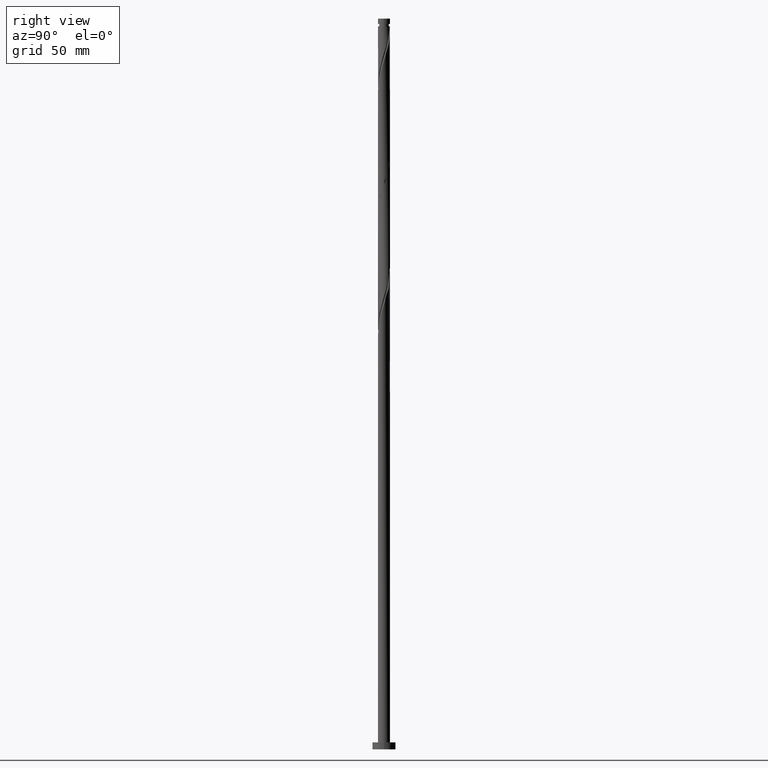
[diagram: clean part render]
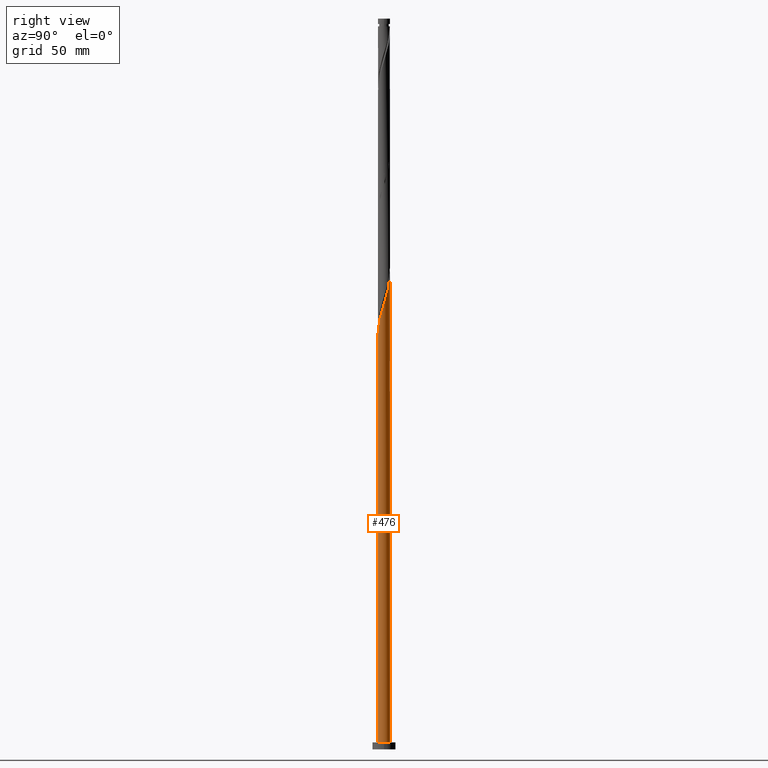
[diagram: same view with one face highlighted and labeled with its STEP entity id]
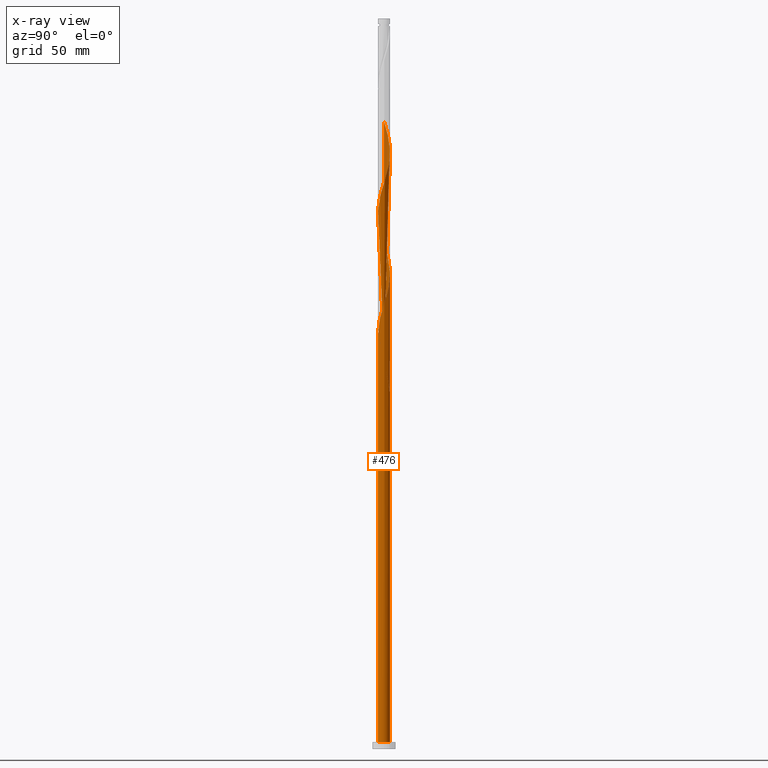
[diagram: x-ray of the same camera — body ghosted, the highlighted face saturated]
A machine part, right view. The second image highlights one B-rep face of the part: STEP entity #476.
The next image is the same camera in x-ray: the body ghosted, the highlighted face saturated — about 0% of this face is hidden behind the body in this view.
In plain terms, the highlighted cylindrical surface (bore or boss wall) has radius 2.6 mm, axis along (-0, -0, -1).
Its self-contained STEP definition (entity closure, byte-faithful):
#6 = CARTESIAN_POINT ( 'NONE',  ( 1.184137513581183132, 2.314696167735583288, 253.5239839780931277 ) ) ;
#7 = ORIENTED_EDGE ( 'NONE', *, *, #1401, .F. ) ;
#13 = CARTESIAN_POINT ( 'NONE',  ( -0.6393803607822544643, -2.520157287600512941, 176.6489839780931277 ) ) ;
#20 = AXIS2_PLACEMENT_3D ( 'NONE', #141, #697, #1101 ) ;
#21 = CARTESIAN_POINT ( 'NONE',  ( -1.444941135775471563, -2.181275912834383934, 173.8364839780931277 ) ) ;
#29 = CARTESIAN_POINT ( 'NONE',  ( 0.6393803607822547974, 2.520157287600512941, 202.8989839780931277 ) ) ;
#41 = CARTESIAN_POINT ( 'NONE',  ( -2.314696167735583732, 1.184137513581183132, 214.1489839780931561 ) ) ;
#50 = CARTESIAN_POINT ( 'NONE',  ( -1.669517066921501369, -1.993166516690927148, 172.8989839780931561 ) ) ;
#57 = LINE ( 'NONE', #1705, #81 ) ;
#60 = CARTESIAN_POINT ( 'NONE',  ( -1.894092998067532507, -1.805057120547471250, 224.4614839780930993 ) ) ;
#81 = VECTOR ( 'NONE', #1713, 1000.000000000000000 ) ;
#86 = CARTESIAN_POINT ( 'NONE',  ( -0.6393803607822529100, 2.520157287600509832, 157.8989839780931845 ) ) ;
#88 = CARTESIAN_POINT ( 'NONE',  ( -1.993166516690927148, 1.669517066921501369, 159.7739839780931561 ) ) ;
#95 = CARTESIAN_POINT ( 'NONE',  ( -2.592198152564242797, 0.3554268301776150607, 164.4614839780931561 ) ) ;
#96 = CARTESIAN_POINT ( 'NONE',  ( 0.000000000000000000, 0.000000000000000000, 154.1489839780931561 ) ) ;
#107 = CARTESIAN_POINT ( 'NONE',  ( 0.2303028164299621983, -2.606296243045292726, 231.9614839780931277 ) ) ;
#108 = ORIENTED_EDGE ( 'NONE', *, *, #502, .F. ) ;
#119 = CARTESIAN_POINT ( 'NONE',  ( 1.993166516690927148, -1.669517066921501369, 238.5239839780931845 ) ) ;
#129 = CARTESIAN_POINT ( 'NONE',  ( -2.314696167735583732, 1.184137513581183132, 266.6489839780931561 ) ) ;
#141 = CARTESIAN_POINT ( 'NONE',  ( 0.000000000000000000, 0.000000000000000000, 3.000000000000000000 ) ) ;
#142 = ORIENTED_EDGE ( 'NONE', *, *, #1593, .T. ) ;
#159 = CARTESIAN_POINT ( 'NONE',  ( -1.894092998067532507, -1.805057120547471250, 171.9614839780932414 ) ) ;
#168 = CARTESIAN_POINT ( 'NONE',  ( 2.548000000000004039, 0.5173934672954453307, 193.5239839780932414 ) ) ;
#178 = CARTESIAN_POINT ( 'NONE',  ( 1.444941135775472008, 2.181275912834383046, 200.0864839780931561 ) ) ;
#184 = CARTESIAN_POINT ( 'NONE',  ( -1.805057120547471472, 1.894092998067532507, 211.3364839780931561 ) ) ;
#193 = CARTESIAN_POINT ( 'NONE',  ( 2.520157287600512941, -0.6393803607822544643, 189.7739839780931277 ) ) ;
#202 = CARTESIAN_POINT ( 'NONE',  ( -2.368985442673811725, -1.071404672567553451, 221.6489839780931845 ) ) ;
#223 = CARTESIAN_POINT ( 'NONE',  ( -0.3554268301776140060, 2.592198152564239688, 156.9614839780932130 ) ) ;
#235 = CARTESIAN_POINT ( 'NONE',  ( -1.805057120547471472, 1.894092998067532507, 158.8364839780931277 ) ) ;
#239 = EDGE_CURVE ( 'NONE', #1625, #1253, #57, .T. ) ;
#249 = CARTESIAN_POINT ( 'NONE',  ( 1.444941135775472008, 2.181275912834383046, 252.5864839780930424 ) ) ;
#260 = CARTESIAN_POINT ( 'NONE',  ( 0.8044841181609286851, -2.489703756954713576, 233.8364839780931845 ) ) ;
#261 = VERTEX_POINT ( 'NONE', #1024 ) ;
#271 = CARTESIAN_POINT ( 'NONE',  ( 2.489703756954713576, 0.8044841181609284630, 246.9614839780931845 ) ) ;
#293 = CARTESIAN_POINT ( 'NONE',  ( 2.181275912834383934, -1.444941135775472008, 186.9614839780931277 ) ) ;
#303 = CYLINDRICAL_SURFACE ( 'NONE', #1150, 2.600000000000000089 ) ;
#311 = DIRECTION ( 'NONE',  ( -0.000000000000000000, -0.000000000000000000, -1.000000000000000000 ) ) ;
#321 = CARTESIAN_POINT ( 'NONE',  ( -1.071404672567553451, 2.368985442673811725, 208.5239839780931277 ) ) ;
#331 = CARTESIAN_POINT ( 'NONE',  ( -2.520157287600513385, 0.6393803607822543533, 216.0239839780931277 ) ) ;
#335 = VERTEX_POINT ( 'NONE', #504 ) ;
#339 = CARTESIAN_POINT ( 'NONE',  ( -2.599247197804768650, 0.06256200687382625081, 217.8989839780931277 ) ) ;
#343 = EDGE_CURVE ( 'NONE', #698, #261, #915, .T. ) ;
#382 = CARTESIAN_POINT ( 'NONE',  ( -0.3554268301776152272, -2.592198152564243241, 230.0864839780931277 ) ) ;
#383 = CARTESIAN_POINT ( 'NONE',  ( 0.000000000000000000, 0.000000000000000000, 3.000000000000000000 ) ) ;
#389 = CARTESIAN_POINT ( 'NONE',  ( 1.894092998067532507, 1.805057120547471028, 250.7114839780931277 ) ) ;
#400 = CARTESIAN_POINT ( 'NONE',  ( -1.071404672567553451, 2.368985442673811725, 261.0239839780931561 ) ) ;
#403 = CIRCLE ( 'NONE', #1298, 2.600000000000000089 ) ;
#405 = CARTESIAN_POINT ( 'NONE',  ( 2.600000000000000089, 0.000000000000000000, 3.000000000000000000 ) ) ;
#416 = CARTESIAN_POINT ( 'NONE',  ( -1.338325226974177662, 2.248267128392909431, 261.9614839780931561 ) ) ;
#432 = CARTESIAN_POINT ( 'NONE',  ( 1.993166516690927148, -1.669517066921501369, 186.0239839780931561 ) ) ;
#442 = CARTESIAN_POINT ( 'NONE',  ( 1.894092998067532507, 1.805057120547471028, 198.2114839780931561 ) ) ;
#446 = VERTEX_POINT ( 'NONE', #405 ) ;
#452 = CARTESIAN_POINT ( 'NONE',  ( -0.5173934672954451086, 2.548000000000004039, 206.6489839780931845 ) ) ;
#474 = CARTESIAN_POINT ( 'NONE',  ( -2.548000000000004039, -0.5173934672954456637, 219.7739839780931845 ) ) ;
#476 = ADVANCED_FACE ( 'NONE', ( #1690 ), #303, .T. ) ;
#502 = EDGE_CURVE ( 'NONE', #335, #1625, #1194, .T. ) ;
#504 = CARTESIAN_POINT ( 'NONE',  ( -2.600000000000004086, -2.320957782597260787E-15, 165.5994669001870818 ) ) ;
#506 = ORIENTED_EDGE ( 'NONE', *, *, #1303, .F. ) ;
#510 = CARTESIAN_POINT ( 'NONE',  ( -2.600000000000004086, -2.320957782597260787E-15, 165.5994669001870818 ) ) ;
#525 = CARTESIAN_POINT ( 'NONE',  ( -0.6393803607822544643, -2.520157287600512941, 229.1489839780930708 ) ) ;
#536 = CARTESIAN_POINT ( 'NONE',  ( -1.571691173760824789, 2.071180063230221080, 262.8989839780931561 ) ) ;
#556 = EDGE_CURVE ( 'NONE', #446, #591, #1539, .T. ) ;
#560 = CARTESIAN_POINT ( 'NONE',  ( 2.181275912834383934, -1.444941135775472008, 239.4614839780931277 ) ) ;
#566 = CARTESIAN_POINT ( 'NONE',  ( 1.805057120547471250, -1.894092998067532507, 185.0864839780931277 ) ) ;
#586 = CARTESIAN_POINT ( 'NONE',  ( 0.3554268301776155048, 2.592198152564242797, 203.8364839780931845 ) ) ;
#591 = VERTEX_POINT ( 'NONE', #1672 ) ;
#596 = CARTESIAN_POINT ( 'NONE',  ( 1.571691173760824567, -2.071180063230221524, 184.1489839780931561 ) ) ;
#604 = CARTESIAN_POINT ( 'NONE',  ( 1.338325226974177218, -2.248267128392909431, 183.2114839780931561 ) ) ;
#614 = CARTESIAN_POINT ( 'NONE',  ( -1.669517066921501369, -1.993166516690927148, 225.3989839780931845 ) ) ;
#639 = LINE ( 'NONE', #1634, #781 ) ;
#641 = CARTESIAN_POINT ( 'NONE',  ( -2.181275912834383934, 1.444941135775471563, 160.7114839780930708 ) ) ;
#645 = ORIENTED_EDGE ( 'NONE', *, *, #556, .T. ) ;
#651 = CARTESIAN_POINT ( 'NONE',  ( -2.599247197804768650, 0.06256200687382625081, 165.3989839780931277 ) ) ;
#665 = CARTESIAN_POINT ( 'NONE',  ( 1.071404672567553229, -2.368985442673811725, 234.7739839780931561 ) ) ;
#675 = CARTESIAN_POINT ( 'NONE',  ( -0.06256200687382634795, -2.599247197804768650, 231.0239839780931561 ) ) ;
#686 = CARTESIAN_POINT ( 'NONE',  ( -2.181275912834383934, 1.444941135775471563, 265.7114839780931561 ) ) ;
#697 = DIRECTION ( 'NONE',  ( 0.000000000000000000, 0.000000000000000000, 1.000000000000000000 ) ) ;
#698 = VERTEX_POINT ( 'NONE', #1148 ) ;
#705 = CARTESIAN_POINT ( 'NONE',  ( -2.600000000000004086, 1.682880964552032780E-15, 270.5994669001871102 ) ) ;
#711 = CARTESIAN_POINT ( 'NONE',  ( -2.548000000000004039, -0.5173934672954456637, 167.2739839780931277 ) ) ;
#729 = CARTESIAN_POINT ( 'NONE',  ( 2.248267128392909431, 1.338325226974177218, 196.3364839780930993 ) ) ;
#739 = CARTESIAN_POINT ( 'NONE',  ( -1.993166516690927148, 1.669517066921501369, 212.2739839780931845 ) ) ;
#747 = CARTESIAN_POINT ( 'NONE',  ( 1.071404672567553229, -2.368985442673811725, 182.2739839780931561 ) ) ;
#757 =( BOUNDED_CURVE ( )  B_SPLINE_CURVE ( 2, ( #1490, #780, #1622, #916, #1331, #235, #88, #641, #1183, #789, #1340, #95, #651, #1193, #510 ),
 .UNSPECIFIED., .F., .T. ) 
 B_SPLINE_CURVE_WITH_KNOTS ( ( 3, 2, 2, 2, 2, 2, 2, 3 ),
 ( 0.000000000000000000, 0.008928571428571396851, 0.01785714285714290472, 0.02678571428571430157, 0.03571428571428569843, 0.04464285714285709528, 0.05357142857142860315, 0.05453034012992217378 ),
 .UNSPECIFIED. ) 
 CURVE ( )  GEOMETRIC_REPRESENTATION_ITEM ( )  RATIONAL_B_SPLINE_CURVE ( ( 0.9090909090909558010, 0.9033747362666306735, 0.9090909090909558010, 0.9033747362666306735, 0.9090909090909558010, 0.9033747362666306735, 0.9090909090909558010, 0.9033747362666306735, 0.9090909090909558010, 0.9033747362666306735, 0.9090909090909558010, 0.9033747362666306735, 0.9090909090909558010, 0.9084770030214975867, 0.9079949616362259501 ) ) 
 REPRESENTATION_ITEM ( '' )  );
#758 = CARTESIAN_POINT ( 'NONE',  ( -2.606296243045292726, -0.2303028164299624203, 218.8364839780931561 ) ) ;
#778 = CARTESIAN_POINT ( 'NONE',  ( -2.368985442673807285, 1.071404672567552341, 165.3989839780931277 ) ) ;
#780 = CARTESIAN_POINT ( 'NONE',  ( -0.8044841181609290182, 2.489703756954712688, 155.0864839780932130 ) ) ;
#781 = VECTOR ( 'NONE', #1789, 1000.000000000000000 ) ;
#787 = CARTESIAN_POINT ( 'NONE',  ( -1.184137513581180023, 2.314696167735580179, 159.7739839780931561 ) ) ;
#789 = CARTESIAN_POINT ( 'NONE',  ( -2.448116422636782197, 0.9233338913868939235, 162.5864839780931561 ) ) ;
#802 = CARTESIAN_POINT ( 'NONE',  ( 1.338325226974177218, -2.248267128392909431, 235.7114839780931845 ) ) ;
#813 = CARTESIAN_POINT ( 'NONE',  ( -0.8044841181609290182, 2.489703756954712688, 260.0864839780930993 ) ) ;
#823 = CARTESIAN_POINT ( 'NONE',  ( -2.592198152564242797, 0.3554268301776150607, 269.4614839780930993 ) ) ;
#833 = CARTESIAN_POINT ( 'NONE',  ( -0.5173934672954451086, 2.548000000000004039, 259.1489839780930993 ) ) ;
#853 = CARTESIAN_POINT ( 'NONE',  ( 2.314696167735583288, -1.184137513581183132, 187.8989839780931845 ) ) ;
#859 = EDGE_CURVE ( 'NONE', #698, #335, #757, .T. ) ;
#861 = CARTESIAN_POINT ( 'NONE',  ( -2.368985442673811725, -1.071404672567553451, 169.1489839780931845 ) ) ;
#867 = DIRECTION ( 'NONE',  ( -1.000000000000000000, 0.000000000000000000, 0.000000000000000000 ) ) ;
#876 = CARTESIAN_POINT ( 'NONE',  ( -1.571691173760824789, 2.071180063230221080, 210.3989839780931277 ) ) ;
#882 = CARTESIAN_POINT ( 'NONE',  ( -2.592198152564242797, 0.3554268301776150607, 216.9614839780931561 ) ) ;
#889 = CARTESIAN_POINT ( 'NONE',  ( -2.248267128392909431, -1.338325226974177440, 222.5864839780931277 ) ) ;
#915 = CIRCLE ( 'NONE', #1059, 2.600000000000000089 ) ;
#916 = CARTESIAN_POINT ( 'NONE',  ( -1.338325226974177662, 2.248267128392909431, 156.9614839780931277 ) ) ;
#922 = CARTESIAN_POINT ( 'NONE',  ( 0.2303028164299626424, 2.606296243045289618, 155.0864839780931561 ) ) ;
#927 = CARTESIAN_POINT ( 'NONE',  ( 2.314696167735583288, -1.184137513581183132, 240.3989839780931561 ) ) ;
#929 = CARTESIAN_POINT ( 'NONE',  ( -1.894092998067529177, 1.805057120547469474, 162.5864839780932130 ) ) ;
#935 = CARTESIAN_POINT ( 'NONE',  ( 0.6393803607822547974, 2.520157287600512941, 255.3989839780931277 ) ) ;
#937 = CARTESIAN_POINT ( 'NONE',  ( -0.06256200687382565406, 2.599247197804763765, 156.0239839780931277 ) ) ;
#947 = CARTESIAN_POINT ( 'NONE',  ( 0.5173934672954454417, -2.548000000000004039, 232.8989839780931845 ) ) ;
#957 = CARTESIAN_POINT ( 'NONE',  ( 2.606296243045292726, 0.2303028164299620595, 245.0864839780930993 ) ) ;
#967 = CARTESIAN_POINT ( 'NONE',  ( -2.448116422636782197, 0.9233338913868939235, 267.5864839780931561 ) ) ;
#975 = CARTESIAN_POINT ( 'NONE',  ( -2.600000000000004086, -2.320957782597260787E-15, 165.5994669001870818 ) ) ;
#984 = CARTESIAN_POINT ( 'NONE',  ( 2.592198152564242797, -0.3554268301776152827, 190.7114839780932130 ) ) ;
#992 = CARTESIAN_POINT ( 'NONE',  ( 1.669517066921501369, 1.993166516690927148, 199.1489839780931277 ) ) ;
#1000 = CARTESIAN_POINT ( 'NONE',  ( 1.184137513581183132, 2.314696167735583288, 201.0239839780931561 ) ) ;
#1013 = CARTESIAN_POINT ( 'NONE',  ( 0.8044841181609286851, -2.489703756954713576, 181.3364839780931277 ) ) ;
#1021 = CARTESIAN_POINT ( 'NONE',  ( -1.184137513581183132, -2.314696167735583288, 227.2739839780931561 ) ) ;
#1024 = CARTESIAN_POINT ( 'NONE',  ( 0.5173934672954459968, 2.547999999999999154, 154.1489839780931561 ) ) ;
#1056 = CARTESIAN_POINT ( 'NONE',  ( -2.600000000000000089, 3.041126355010900916E-15, 168.9485010559992304 ) ) ;
#1059 = AXIS2_PLACEMENT_3D ( 'NONE', #96, #1599, #1465 ) ;
#1072 = CARTESIAN_POINT ( 'NONE',  ( -0.2303028164299619485, 2.606296243045292726, 258.2114839780930424 ) ) ;
#1074 = DIRECTION ( 'NONE',  ( 1.000000000000000000, 0.000000000000000000, 0.000000000000000000 ) ) ;
#1081 = CARTESIAN_POINT ( 'NONE',  ( 2.592198152564242797, -0.3554268301776152827, 243.2114839780931561 ) ) ;
#1083 = CARTESIAN_POINT ( 'NONE',  ( -1.444941135775469343, 2.181275912834380826, 160.7114839780931277 ) ) ;
#1101 = DIRECTION ( 'NONE',  ( 1.000000000000000000, 0.000000000000000000, 0.000000000000000000 ) ) ;
#1109 = CARTESIAN_POINT ( 'NONE',  ( 0.06256200687382688919, 2.599247197804768206, 257.2739839780931561 ) ) ;
#1114 = CARTESIAN_POINT ( 'NONE',  ( 0.5173934672954454417, -2.548000000000004039, 180.3989839780931845 ) ) ;
#1127 = CARTESIAN_POINT ( 'NONE',  ( 0.2303028164299621983, -2.606296243045292726, 179.4614839780931277 ) ) ;
#1135 = CARTESIAN_POINT ( 'NONE',  ( 0.06256200687382688919, 2.599247197804768206, 204.7739839780931561 ) ) ;
#1145 = CARTESIAN_POINT ( 'NONE',  ( -1.338325226974177662, 2.248267128392909431, 209.4614839780931561 ) ) ;
#1148 = CARTESIAN_POINT ( 'NONE',  ( -0.5173934672954452196, 2.548000000000004039, 154.1489839780931561 ) ) ;
#1150 = AXIS2_PLACEMENT_3D ( 'NONE', #1274, #311, #867 ) ;
#1154 = CARTESIAN_POINT ( 'NONE',  ( -1.184137513581183132, -2.314696167735583288, 174.7739839780931561 ) ) ;
#1159 = CARTESIAN_POINT ( 'NONE',  ( -1.444941135775471563, -2.181275912834383934, 226.3364839780931277 ) ) ;
#1183 = CARTESIAN_POINT ( 'NONE',  ( -2.314696167735583732, 1.184137513581183132, 161.6489839780931845 ) ) ;
#1193 = CARTESIAN_POINT ( 'NONE',  ( -2.600000000000004086, 0.03128553263260996919, 165.4991042119619920 ) ) ;
#1194 =( BOUNDED_CURVE ( )  B_SPLINE_CURVE ( 2, ( #975, #1265, #711, #1558, #861, #1257, #1408, #159, #50, #21, #1154, #1540, #13, #1715, #1427, #1127, #1114, #1013, #747, #604, #596, #566, #432, #293, #853, #1724, #193, #984, #1549, #1418, #168, #1440, #1446, #729, #1702, #442, #992, #178, #1000, #1294, #29, #586, #1135, #1709, #452, #1571, #321, #1145, #876, #184, #739, #1283, #41, #1581, #331, #882, #339, #758, #474, #1589, #202, #889, #1305, #60, #614, #1159, #1021, #1455, #525, #382, #675, #107, #947, #260, #665, #802, #1351, #1252, #119, #560, #927, #1218, #1787, #1081, #1642, #957, #1524, #271, #1209, #1651, #1777, #389, #1501, #249, #6, #1398, #935, #1508, #1109, #1072, #833, #813, #400, #416, #536, #1375, #1365, #686, #129, #967, #1516, #823, #1230, #1796, #705 ),
 .UNSPECIFIED., .F., .T. ) 
 B_SPLINE_CURVE_WITH_KNOTS ( ( 3, 2, 2, 2, 2, 2, 2, 2, 2, 2, 2, 2, 2, 2, 2, 2, 2, 2, 2, 2, 2, 2, 2, 2, 2, 2, 2, 2, 2, 2, 2, 2, 2, 2, 2, 2, 2, 2, 2, 2, 2, 2, 2, 2, 2, 2, 2, 2, 2, 2, 2, 2, 2, 2, 2, 2, 2, 3 ),
 ( 0.05453034012992217378, 0.06250000000000000000, 0.07142857142857139685, 0.08035714285714290472, 0.08928571428571430157, 0.09821428571428569843, 0.1071428571428570953, 0.1160714285714286031, 0.1250000000000000000, 0.1339285714285713969, 0.1428571428571429047, 0.1517857142857143016, 0.1607142857142856984, 0.1696428571428570953, 0.1785714285714286031, 0.1875000000000000000, 0.1964285714285713969, 0.2053571428571429047, 0.2142857142857143016, 0.2232142857142856984, 0.2321428571428570953, 0.2410714285714286031, 0.2500000000000000000, 0.2589285714285713969, 0.2678571428571429047, 0.2767857142857143016, 0.2857142857142856984, 0.2946428571428570953, 0.3035714285714286031, 0.3125000000000000000, 0.3214285714285713969, 0.3303571428571429047, 0.3392857142857143016, 0.3482142857142856984, 0.3571428571428570953, 0.3660714285714286031, 0.3750000000000000000, 0.3839285714285713969, 0.3928571428571429047, 0.4017857142857143016, 0.4107142857142856984, 0.4196428571428570953, 0.4285714285714286031, 0.4375000000000000000, 0.4464285714285713969, 0.4553571428571429047, 0.4642857142857143016, 0.4732142857142856984, 0.4821428571428570953, 0.4910714285714286031, 0.5000000000000000000, 0.5089285714285713969, 0.5178571428571427937, 0.5267857142857143016, 0.5357142857142856984, 0.5446428571428572063, 0.5535714285714286031, 0.5545303401299219725 ),
 .UNSPECIFIED. ) 
 CURVE ( )  GEOMETRIC_REPRESENTATION_ITEM ( )  RATIONAL_B_SPLINE_CURVE ( ( 0.9079949616362259501, 0.9039886423360891099, 0.9090909090909558010, 0.9033747362666306735, 0.9090909090909558010, 0.9033747362666306735, 0.9090909090909558010, 0.9033747362666306735, 0.9090909090909558010, 0.9033747362666306735, 0.9090909090909558010, 0.9033747362666306735, 0.9090909090909558010, 0.9033747362666306735, 0.9090909090909558010, 0.9033747362666306735, 0.9090909090909558010, 0.9033747362666306735, 0.9090909090909558010, 0.9033747362666306735, 0.9090909090909558010, 0.9033747362666306735, 0.9090909090909558010, 0.9033747362666306735, 0.9090909090909558010, 0.9033747362666306735, 0.9090909090909558010, 0.9033747362666306735, 0.9090909090909558010, 0.9033747362666306735, 0.9090909090909558010, 0.9033747362666306735, 0.9090909090909558010, 0.9033747362666306735, 0.9090909090909558010, 0.9033747362666306735, 0.9090909090909558010, 0.9033747362666306735, 0.9090909090909558010, 0.9033747362666306735, 0.9090909090909558010, 0.9033747362666306735, 0.9090909090909558010, 0.9033747362666306735, 0.9090909090909558010, 0.9033747362666306735, 0.9090909090909558010, 0.9033747362666306735, 0.9090909090909558010, 0.9033747362666306735, 0.9090909090909558010, 0.9033747362666306735, 0.9090909090909558010, 0.9033747362666306735, 0.9090909090909558010, 0.9033747362666306735, 0.9090909090909558010, 0.9033747362666306735, 0.9090909090909558010, 0.9033747362666306735, 0.9090909090909558010, 0.9033747362666306735, 0.9090909090909558010, 0.9033747362666306735, 0.9090909090909558010, 0.9033747362666306735, 0.9090909090909558010, 0.9033747362666306735, 0.9090909090909558010, 0.9033747362666306735, 0.9090909090909558010, 0.9033747362666306735, 0.9090909090909558010, 0.9033747362666306735, 0.9090909090909558010, 0.9033747362666306735, 0.9090909090909558010, 0.9033747362666306735, 0.9090909090909558010, 0.9033747362666306735, 0.9090909090909558010, 0.9033747362666306735, 0.9090909090909558010, 0.9033747362666306735, 0.9090909090909558010, 0.9033747362666306735, 0.9090909090909558010, 0.9033747362666306735, 0.9090909090909558010, 0.9033747362666306735, 0.9090909090909558010, 0.9033747362666306735, 0.9090909090909558010, 0.9033747362666306735, 0.9090909090909558010, 0.9033747362666306735, 0.9090909090909558010, 0.9033747362666306735, 0.9090909090909558010, 0.9033747362666306735, 0.9090909090909558010, 0.9033747362666306735, 0.9090909090909558010, 0.9033747362666306735, 0.9090909090909558010, 0.9033747362666306735, 0.9090909090909558010, 0.9033747362666306735, 0.9090909090909558010, 0.9033747362666306735, 0.9090909090909558010, 0.9033747362666306735, 0.9090909090909558010, 0.9084770030214975867, 0.9079949616362259501 ) ) 
 REPRESENTATION_ITEM ( '' )  );
#1198 = ORIENTED_EDGE ( 'NONE', *, *, #1303, .T. ) ;
#1209 = CARTESIAN_POINT ( 'NONE',  ( 2.368985442673811725, 1.071404672567553007, 247.8989839780931277 ) ) ;
#1211 = CARTESIAN_POINT ( 'NONE',  ( -1.669517066921498927, 1.993166516690924706, 161.6489839780931561 ) ) ;
#1218 = CARTESIAN_POINT ( 'NONE',  ( 2.448116422636782197, -0.9233338913868941455, 241.3364839780931561 ) ) ;
#1230 = CARTESIAN_POINT ( 'NONE',  ( -2.599247197804768650, 0.06256200687382625081, 270.3989839780931561 ) ) ;
#1252 = CARTESIAN_POINT ( 'NONE',  ( 1.805057120547471250, -1.894092998067532507, 237.5864839780931561 ) ) ;
#1253 = VERTEX_POINT ( 'NONE', #1602 ) ;
#1257 = CARTESIAN_POINT ( 'NONE',  ( -2.248267128392909431, -1.338325226974177440, 170.0864839780931561 ) ) ;
#1262 = EDGE_LOOP ( 'NONE', ( #1662, #108, #1198, #142, #645, #506, #1525, #1352, #7 ) ) ;
#1265 = CARTESIAN_POINT ( 'NONE',  ( -2.600000000000002309, -0.2613098319674008185, 166.4377379791506542 ) ) ;
#1274 = CARTESIAN_POINT ( 'NONE',  ( 0.000000000000000000, 0.000000000000000000, 315.0000000000000000 ) ) ;
#1283 = CARTESIAN_POINT ( 'NONE',  ( -2.181275912834383934, 1.444941135775471563, 213.2114839780931277 ) ) ;
#1294 = CARTESIAN_POINT ( 'NONE',  ( 0.9233338913868945896, 2.448116422636781753, 201.9614839780931277 ) ) ;
#1298 = AXIS2_PLACEMENT_3D ( 'NONE', #383, #1502, #1074 ) ;
#1303 = EDGE_CURVE ( 'NONE', #335, #591, #639, .T. ) ;
#1305 = CARTESIAN_POINT ( 'NONE',  ( -2.071180063230221080, -1.571691173760824789, 223.5239839780931561 ) ) ;
#1308 =( BOUNDED_CURVE ( )  B_SPLINE_CURVE ( 2, ( #1056, #1510, #1367, #1337, #778, #1779, #1327, #929, #1211, #1083, #787, #1653, #86, #223, #937, #922, #1626 ),
 .UNSPECIFIED., .F., .T. ) 
 B_SPLINE_CURVE_WITH_KNOTS ( ( 3, 2, 2, 2, 2, 2, 2, 2, 3 ),
 ( 0.9295303401299218615, 0.9375000000000000000, 0.9464285714285713969, 0.9553571428571429047, 0.9642857142857143016, 0.9732142857142856984, 0.9821428571428570953, 0.9910714285714286031, 1.000000000000000000 ),
 .UNSPECIFIED. ) 
 CURVE ( )  GEOMETRIC_REPRESENTATION_ITEM ( )  RATIONAL_B_SPLINE_CURVE ( ( 0.9079949616362197329, 0.9039886423360823375, 0.9090909090909493617, 0.9033747362666241232, 0.9090909090909493617, 0.9033747362666241232, 0.9090909090909493617, 0.9033747362666241232, 0.9090909090909493617, 0.9033747362666241232, 0.9090909090909493617, 0.9033747362666241232, 0.9090909090909493617, 0.9033747362666241232, 0.9090909090909493617, 0.9033747362666241232, 0.9090909090909493617 ) ) 
 REPRESENTATION_ITEM ( '' )  );
#1327 = CARTESIAN_POINT ( 'NONE',  ( -2.071180063230217083, 1.571691173760822346, 163.5239839780931561 ) ) ;
#1331 = CARTESIAN_POINT ( 'NONE',  ( -1.571691173760824789, 2.071180063230221080, 157.8989839780931561 ) ) ;
#1337 = CARTESIAN_POINT ( 'NONE',  ( -2.489703756954709579, 0.8044841181609286851, 166.3364839780931561 ) ) ;
#1340 = CARTESIAN_POINT ( 'NONE',  ( -2.520157287600513385, 0.6393803607822543533, 163.5239839780930993 ) ) ;
#1351 = CARTESIAN_POINT ( 'NONE',  ( 1.571691173760824567, -2.071180063230221524, 236.6489839780931277 ) ) ;
#1352 = ORIENTED_EDGE ( 'NONE', *, *, #343, .T. ) ;
#1365 = CARTESIAN_POINT ( 'NONE',  ( -1.993166516690927148, 1.669517066921501369, 264.7739839780930993 ) ) ;
#1367 = CARTESIAN_POINT ( 'NONE',  ( -2.547999999999999154, 0.5173934672954455527, 167.2739839780931277 ) ) ;
#1375 = CARTESIAN_POINT ( 'NONE',  ( -1.805057120547471472, 1.894092998067532507, 263.8364839780931561 ) ) ;
#1398 = CARTESIAN_POINT ( 'NONE',  ( 0.9233338913868945896, 2.448116422636781753, 254.4614839780931277 ) ) ;
#1401 = EDGE_CURVE ( 'NONE', #1253, #261, #1308, .T. ) ;
#1408 = CARTESIAN_POINT ( 'NONE',  ( -2.071180063230221080, -1.571691173760824789, 171.0239839780931277 ) ) ;
#1418 = CARTESIAN_POINT ( 'NONE',  ( 2.606296243045292726, 0.2303028164299620595, 192.5864839780930993 ) ) ;
#1427 = CARTESIAN_POINT ( 'NONE',  ( -0.06256200687382634795, -2.599247197804768650, 178.5239839780931561 ) ) ;
#1440 = CARTESIAN_POINT ( 'NONE',  ( 2.489703756954713576, 0.8044841181609284630, 194.4614839780931561 ) ) ;
#1446 = CARTESIAN_POINT ( 'NONE',  ( 2.368985442673811725, 1.071404672567553007, 195.3989839780931277 ) ) ;
#1455 = CARTESIAN_POINT ( 'NONE',  ( -0.9233338913868941455, -2.448116422636782197, 228.2114839780931277 ) ) ;
#1465 = DIRECTION ( 'NONE',  ( -1.000000000000000000, 0.000000000000000000, 0.000000000000000000 ) ) ;
#1490 = CARTESIAN_POINT ( 'NONE',  ( -0.5173934672954452196, 2.548000000000004039, 154.1489839780931845 ) ) ;
#1501 = CARTESIAN_POINT ( 'NONE',  ( 1.669517066921501369, 1.993166516690927148, 251.6489839780931561 ) ) ;
#1502 = DIRECTION ( 'NONE',  ( 0.000000000000000000, 0.000000000000000000, 1.000000000000000000 ) ) ;
#1508 = CARTESIAN_POINT ( 'NONE',  ( 0.3554268301776155048, 2.592198152564242797, 256.3364839780932130 ) ) ;
#1510 = CARTESIAN_POINT ( 'NONE',  ( -2.600000000000000533, 0.2613098319673910486, 168.1102299770356581 ) ) ;
#1516 = CARTESIAN_POINT ( 'NONE',  ( -2.520157287600513385, 0.6393803607822543533, 268.5239839780931561 ) ) ;
#1524 = CARTESIAN_POINT ( 'NONE',  ( 2.548000000000004039, 0.5173934672954453307, 246.0239839780931845 ) ) ;
#1525 = ORIENTED_EDGE ( 'NONE', *, *, #859, .F. ) ;
#1539 = CIRCLE ( 'NONE', #20, 2.600000000000000089 ) ;
#1540 = CARTESIAN_POINT ( 'NONE',  ( -0.9233338913868941455, -2.448116422636782197, 175.7114839780931561 ) ) ;
#1549 = CARTESIAN_POINT ( 'NONE',  ( 2.599247197804768650, -0.06256200687382657000, 191.6489839780931845 ) ) ;
#1558 = CARTESIAN_POINT ( 'NONE',  ( -2.489703756954713576, -0.8044841181609289071, 168.2114839780932130 ) ) ;
#1571 = CARTESIAN_POINT ( 'NONE',  ( -0.8044841181609290182, 2.489703756954712688, 207.5864839780931845 ) ) ;
#1581 = CARTESIAN_POINT ( 'NONE',  ( -2.448116422636782197, 0.9233338913868939235, 215.0864839780931277 ) ) ;
#1589 = CARTESIAN_POINT ( 'NONE',  ( -2.489703756954713576, -0.8044841181609289071, 220.7114839780931561 ) ) ;
#1593 = EDGE_CURVE ( 'NONE', #591, #446, #403, .T. ) ;
#1599 = DIRECTION ( 'NONE',  ( 0.000000000000000000, -0.000000000000000000, -1.000000000000000000 ) ) ;
#1602 = CARTESIAN_POINT ( 'NONE',  ( -2.600000000000000089, 3.041126355010901310E-15, 168.9485010559992304 ) ) ;
#1622 = CARTESIAN_POINT ( 'NONE',  ( -1.071404672567553451, 2.368985442673811725, 156.0239839780931561 ) ) ;
#1625 = VERTEX_POINT ( 'NONE', #1644 ) ;
#1626 = CARTESIAN_POINT ( 'NONE',  ( 0.5173934672954459968, 2.547999999999999154, 154.1489839780931561 ) ) ;
#1634 = CARTESIAN_POINT ( 'NONE',  ( -2.600000000000000089, 0.000000000000000000, 315.0000000000000000 ) ) ;
#1642 = CARTESIAN_POINT ( 'NONE',  ( 2.599247197804768650, -0.06256200687382657000, 244.1489839780931561 ) ) ;
#1644 = CARTESIAN_POINT ( 'NONE',  ( -2.600000000000004086, 1.682880964552032780E-15, 270.5994669001871102 ) ) ;
#1651 = CARTESIAN_POINT ( 'NONE',  ( 2.248267128392909431, 1.338325226974177218, 248.8364839780931277 ) ) ;
#1653 = CARTESIAN_POINT ( 'NONE',  ( -0.9233338913868922582, 2.448116422636779976, 158.8364839780931561 ) ) ;
#1662 = ORIENTED_EDGE ( 'NONE', *, *, #239, .F. ) ;
#1672 = CARTESIAN_POINT ( 'NONE',  ( -2.600000000000000089, 0.000000000000000000, 3.000000000000000000 ) ) ;
#1690 = FACE_OUTER_BOUND ( 'NONE', #1262, .T. ) ;
#1702 = CARTESIAN_POINT ( 'NONE',  ( 2.071180063230221524, 1.571691173760824567, 197.2739839780930993 ) ) ;
#1705 = CARTESIAN_POINT ( 'NONE',  ( -2.600000000000000089, 0.000000000000000000, 315.0000000000000000 ) ) ;
#1709 = CARTESIAN_POINT ( 'NONE',  ( -0.2303028164299619485, 2.606296243045292726, 205.7114839780931277 ) ) ;
#1713 = DIRECTION ( 'NONE',  ( -0.000000000000000000, -0.000000000000000000, -1.000000000000000000 ) ) ;
#1715 = CARTESIAN_POINT ( 'NONE',  ( -0.3554268301776152272, -2.592198152564243241, 177.5864839780931845 ) ) ;
#1724 = CARTESIAN_POINT ( 'NONE',  ( 2.448116422636782197, -0.9233338913868941455, 188.8364839780931561 ) ) ;
#1777 = CARTESIAN_POINT ( 'NONE',  ( 2.071180063230221524, 1.571691173760824567, 249.7739839780931277 ) ) ;
#1779 = CARTESIAN_POINT ( 'NONE',  ( -2.248267128392905434, 1.338325226974176552, 164.4614839780932414 ) ) ;
#1787 = CARTESIAN_POINT ( 'NONE',  ( 2.520157287600512941, -0.6393803607822544643, 242.2739839780931561 ) ) ;
#1789 = DIRECTION ( 'NONE',  ( -0.000000000000000000, -0.000000000000000000, -1.000000000000000000 ) ) ;
#1796 = CARTESIAN_POINT ( 'NONE',  ( -2.600000000000003642, 0.03128553263261654033, 270.4991042119619920 ) ) ;